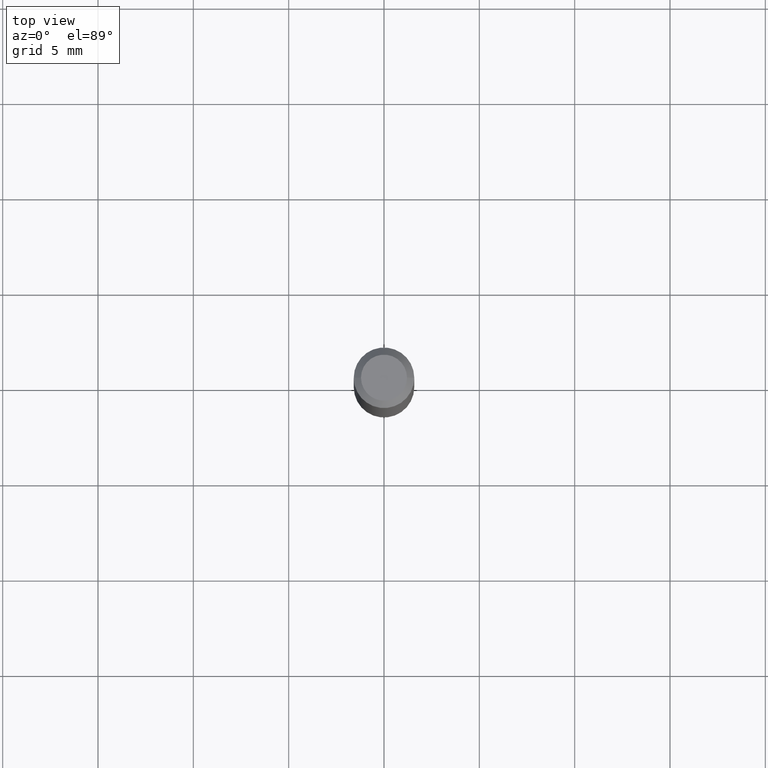
[diagram: clean part render]
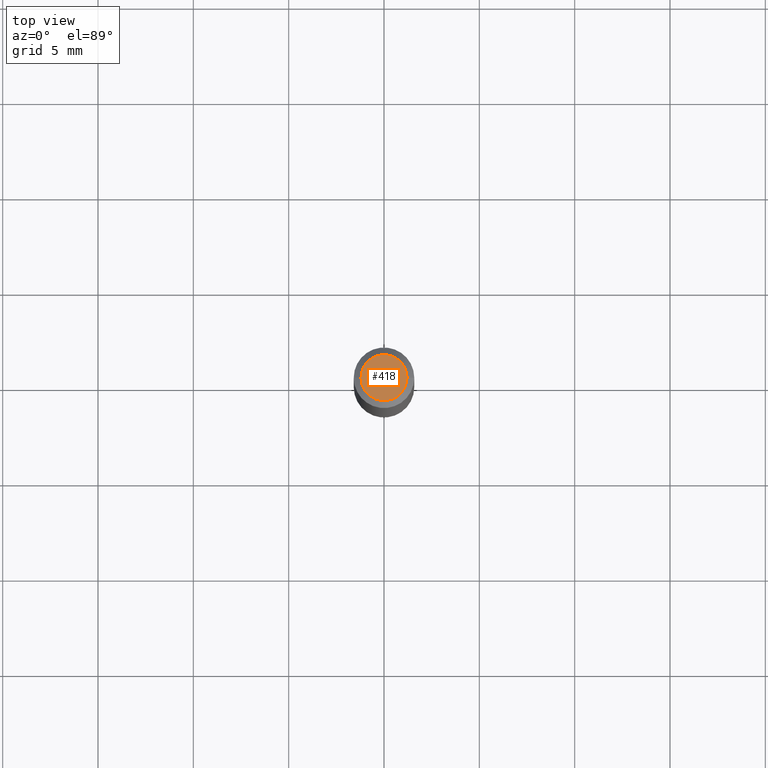
[diagram: same view with one face highlighted and labeled with its STEP entity id]
A machine part, top view. The second image highlights one B-rep face of the part: STEP entity #418.
In plain terms, the highlighted planar face has unit normal (0, -0, -1).
Its self-contained STEP definition (entity closure, byte-faithful):
#6 = CARTESIAN_POINT ( 'NONE',  ( -0.04749999999999999362, 3.578768372314206562E-16, -1.989643822619551895E-16 ) ) ;
#11 = DIRECTION ( 'NONE',  ( 1.000000000000000000, -6.982962677686267499E-15, 4.852736867747366768E-29 ) ) ;
#13 = CIRCLE ( 'NONE', #421, 0.04749999999999999362 ) ;
#60 = EDGE_CURVE ( 'NONE', #267, #448, #412, .T. ) ;
#121 = DIRECTION ( 'NONE',  ( -2.445468806185136597E-29, 3.491481338843145583E-15, 1.000000000000000000 ) ) ;
#141 = DIRECTION ( 'NONE',  ( -1.000000000000000000, 6.982962677686265922E-15, -4.876176775795935793E-29 ) ) ;
#169 = FACE_OUTER_BOUND ( 'NONE', #195, .T. ) ;
#179 = AXIS2_PLACEMENT_3D ( 'NONE', #287, #121, #11 ) ;
#193 = EDGE_CURVE ( 'NONE', #448, #267, #13, .T. ) ;
#195 = EDGE_LOOP ( 'NONE', ( #414, #201 ) ) ;
#201 = ORIENTED_EDGE ( 'NONE', *, *, #60, .T. ) ;
#253 = PLANE ( 'NONE',  #297 ) ;
#267 = VERTEX_POINT ( 'NONE', #298 ) ;
#287 = CARTESIAN_POINT ( 'NONE',  ( 4.865611903635008365E-45, -6.946804277620623666E-31, -1.989643822619527736E-16 ) ) ;
#297 = AXIS2_PLACEMENT_3D ( 'NONE', #457, #386, #141 ) ;
#298 = CARTESIAN_POINT ( 'NONE',  ( 0.04749999999999999362, -4.035134999187581581E-16, -1.989643822619502098E-16 ) ) ;
#372 = DIRECTION ( 'NONE',  ( 1.000000000000000000, -6.982962677686267499E-15, 4.852736867747366768E-29 ) ) ;
#386 = DIRECTION ( 'NONE',  ( 2.438088387897960049E-29, -3.491481338843145188E-15, -1.000000000000000000 ) ) ;
#404 = CARTESIAN_POINT ( 'NONE',  ( 4.865611903635008365E-45, -6.946804277620623666E-31, -1.989643822619527736E-16 ) ) ;
#410 = DIRECTION ( 'NONE',  ( -2.445468806185136597E-29, 3.491481338843145583E-15, 1.000000000000000000 ) ) ;
#412 = CIRCLE ( 'NONE', #179, 0.04749999999999999362 ) ;
#414 = ORIENTED_EDGE ( 'NONE', *, *, #193, .T. ) ;
#418 = ADVANCED_FACE ( 'NONE', ( #169 ), #253, .F. ) ;
#421 = AXIS2_PLACEMENT_3D ( 'NONE', #404, #410, #372 ) ;
#448 = VERTEX_POINT ( 'NONE', #6 ) ;
#457 = CARTESIAN_POINT ( 'NONE',  ( 3.316907271900976096E-16, 0.04749999999999999362, -2.653275547260257586E-16 ) ) ;